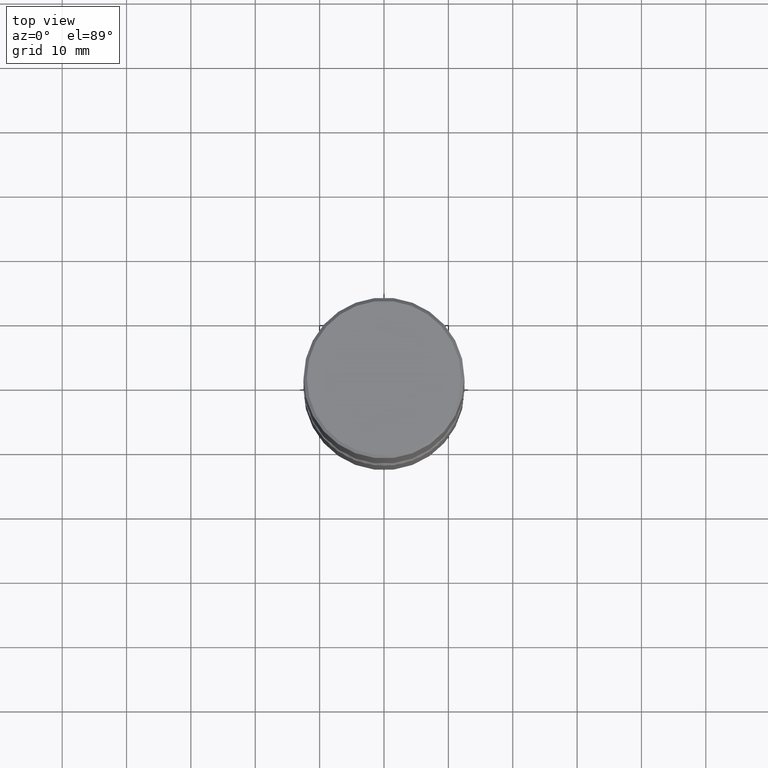
[diagram: clean part render]
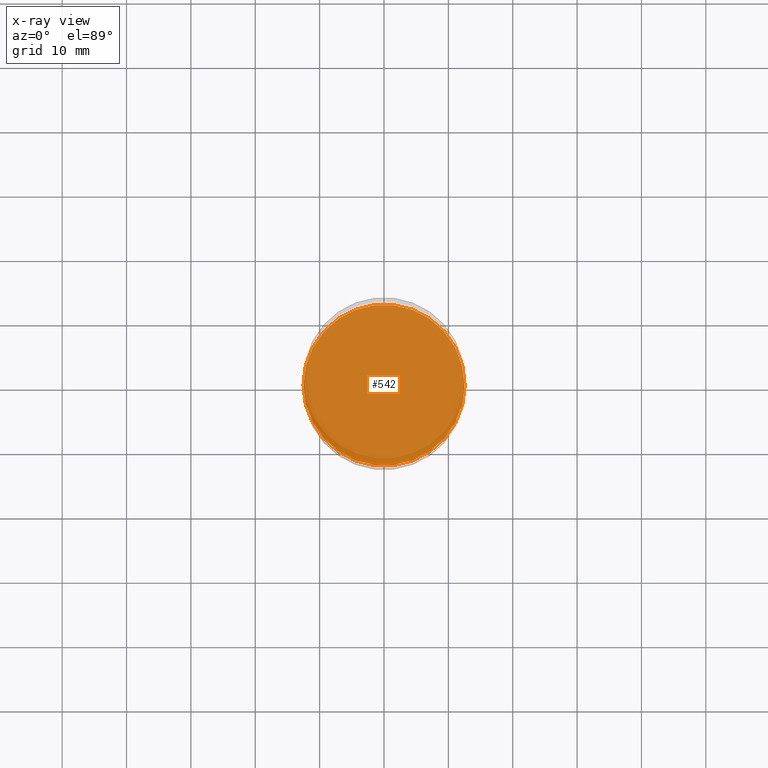
[diagram: x-ray — body ghosted, one internal face saturated and labeled with its STEP entity id]
A machine part, top view, then the same camera in x-ray: the body is ghosted and one INTERNAL B-rep face — a face not visible from any outside direction — is saturated and labeled: STEP entity #542.
In plain terms, the highlighted planar face has unit normal (0, -0, -1).
Its self-contained STEP definition (entity closure, byte-faithful):
#9 = CARTESIAN_POINT ( 'NONE',  ( 0.4921500000000003094, -1.237171497605679270E-14, -2.559099999999999930 ) ) ;
#29 = CIRCLE ( 'NONE', #356, 0.4921500000000003094 ) ;
#40 = ORIENTED_EDGE ( 'NONE', *, *, #82, .T. ) ;
#45 = EDGE_LOOP ( 'NONE', ( #66, #40 ) ) ;
#58 = PLANE ( 'NONE',  #377 ) ;
#59 = DIRECTION ( 'NONE',  ( -2.445468806185136597E-29, 3.491481338843145583E-15, 1.000000000000000000 ) ) ;
#66 = ORIENTED_EDGE ( 'NONE', *, *, #195, .T. ) ;
#82 = EDGE_CURVE ( 'NONE', #432, #137, #29, .T. ) ;
#99 = CARTESIAN_POINT ( 'NONE',  ( 6.258199221908382824E-29, -8.935049894233495342E-15, -2.559099999999999930 ) ) ;
#100 = CIRCLE ( 'NONE', #431, 0.4921500000000003094 ) ;
#103 = FACE_OUTER_BOUND ( 'NONE', #45, .T. ) ;
#137 = VERTEX_POINT ( 'NONE', #9 ) ;
#189 = DIRECTION ( 'NONE',  ( -2.445468806185136597E-29, 3.491481338843145583E-15, 1.000000000000000000 ) ) ;
#195 = EDGE_CURVE ( 'NONE', #137, #432, #100, .T. ) ;
#214 = CARTESIAN_POINT ( 'NONE',  ( -0.4921500000000003094, -8.187306226395251184E-15, -2.559099999999999930 ) ) ;
#232 = CARTESIAN_POINT ( 'NONE',  ( 6.258199221908382824E-29, -8.935049894233495342E-15, -2.559099999999999930 ) ) ;
#278 = CARTESIAN_POINT ( 'NONE',  ( 6.258199221908382824E-29, -8.935049894233495342E-15, -2.559099999999999930 ) ) ;
#353 = DIRECTION ( 'NONE',  ( 1.000000000000000000, -6.982962677686265922E-15, 0.000000000000000000 ) ) ;
#356 = AXIS2_PLACEMENT_3D ( 'NONE', #99, #189, #359 ) ;
#359 = DIRECTION ( 'NONE',  ( 1.000000000000000000, -6.982962677686265922E-15, 0.000000000000000000 ) ) ;
#377 = AXIS2_PLACEMENT_3D ( 'NONE', #232, #403, #480 ) ;
#403 = DIRECTION ( 'NONE',  ( 2.438088387897960049E-29, -3.491481338843145188E-15, -1.000000000000000000 ) ) ;
#431 = AXIS2_PLACEMENT_3D ( 'NONE', #278, #59, #353 ) ;
#432 = VERTEX_POINT ( 'NONE', #214 ) ;
#480 = DIRECTION ( 'NONE',  ( -1.000000000000000000, 6.982962677686265922E-15, -4.876176775795935793E-29 ) ) ;
#542 = ADVANCED_FACE ( 'NONE', ( #103 ), #58, .F. ) ;